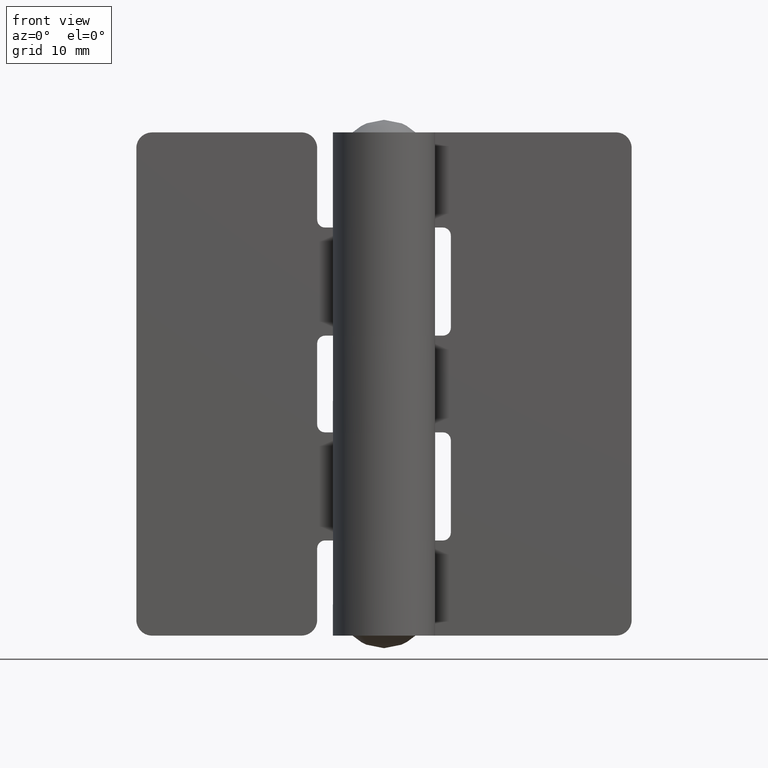
[diagram: clean part render]
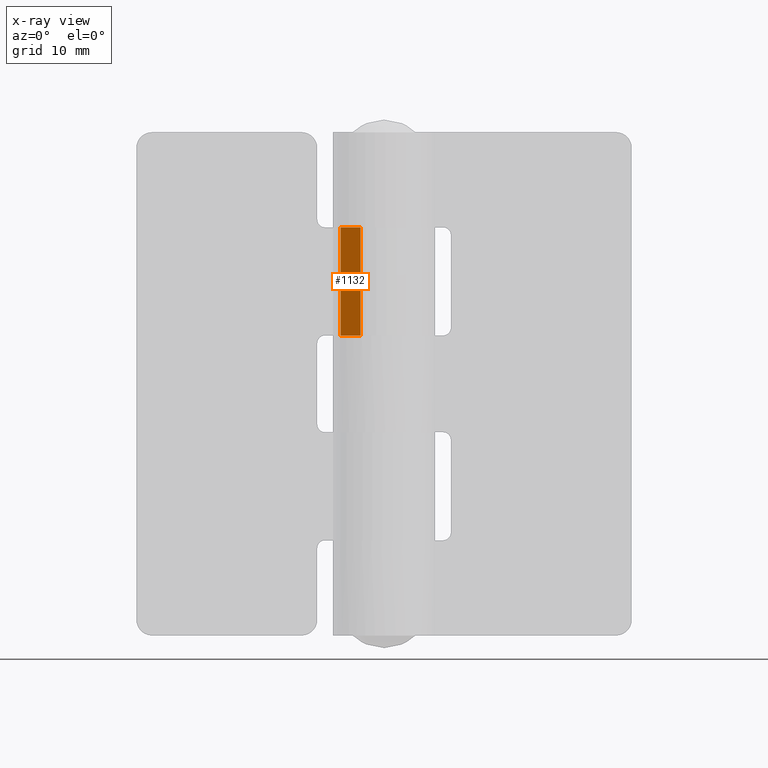
[diagram: x-ray — body ghosted, one internal face saturated and labeled with its STEP entity id]
A machine part, front view, then the same camera in x-ray: the body is ghosted and one INTERNAL B-rep face — a face not visible from any outside direction — is saturated and labeled: STEP entity #1132.
In plain terms, the highlighted face is a freeform B-spline surface patch.
Its self-contained STEP definition (entity closure, byte-faithful):
#624=CARTESIAN_POINT('',(-5.508857131928449,3.449999000000000,38.150001999999851));
#625=VERTEX_POINT('',#624);
#645=CARTESIAN_POINT('',(-2.966306838906535,1.857691238461695,38.150001999999851));
#646=VERTEX_POINT('',#645);
#647=CARTESIAN_POINT('',(-5.508857131928449,3.449999000000000,38.150001999999851));
#648=CARTESIAN_POINT('',(-2.966306838906535,1.857691238461695,38.150001999999851));
#649=QUASI_UNIFORM_CURVE('',1,(#647,#648),.UNSPECIFIED.,.F.,.U.);
#650=EDGE_CURVE('',#625,#646,#649,.T.);
#804=CARTESIAN_POINT('',(-2.966306838906535,1.857691238461695,51.900002000000100));
#805=VERTEX_POINT('',#804);
#825=CARTESIAN_POINT('',(-5.508857131928449,3.449999000000000,51.900002000000100));
#826=VERTEX_POINT('',#825);
#827=CARTESIAN_POINT('',(-5.508857131928449,3.449999000000000,51.900002000000100));
#828=CARTESIAN_POINT('',(-2.966306838906535,1.857691238461695,51.900002000000100));
#829=QUASI_UNIFORM_CURVE('',1,(#827,#828),.UNSPECIFIED.,.F.,.U.);
#830=EDGE_CURVE('',#826,#805,#829,.T.);
#1041=CARTESIAN_POINT('',(-5.508857131928449,3.449999000000000,51.900002000000100));
#1042=CARTESIAN_POINT('',(-5.508857131928449,3.449999000000000,38.150001999999851));
#1043=QUASI_UNIFORM_CURVE('',1,(#1041,#1042),.UNSPECIFIED.,.F.,.U.);
#1044=EDGE_CURVE('',#826,#625,#1043,.T.);
#1112=CARTESIAN_POINT('',(-2.966306838906535,1.857691238461695,51.900002000000100));
#1113=CARTESIAN_POINT('',(-2.966306838906535,1.857691238461695,38.150001999999851));
#1114=QUASI_UNIFORM_CURVE('',1,(#1112,#1113),.UNSPECIFIED.,.F.,.U.);
#1115=EDGE_CURVE('',#805,#646,#1114,.T.);
#1121=CARTESIAN_POINT('',(-2.839306528300973,1.778155513701397,37.463189059474018));
#1122=CARTESIAN_POINT('',(-5.635857578927037,3.529534810178344,37.463189059474018));
#1123=CARTESIAN_POINT('',(-2.839306528300974,1.778155513701397,52.586813834114722));
#1124=CARTESIAN_POINT('',(-5.635857578927037,3.529534810178344,52.586813834114722));
#1125=B_SPLINE_SURFACE_WITH_KNOTS('',1,1,((#1121,#1123),(#1122,#1124)),.UNSPECIFIED.,.F.,.F.,.U.,(2,2),(2,2),(0.0,3.299701080232242),(0.0,15.123624774640700),.UNSPECIFIED.);
#1126=ORIENTED_EDGE('',*,*,#650,.F.);
#1127=ORIENTED_EDGE('',*,*,#1044,.F.);
#1128=ORIENTED_EDGE('',*,*,#830,.T.);
#1129=ORIENTED_EDGE('',*,*,#1115,.T.);
#1130=EDGE_LOOP('',(#1126,#1127,#1128,#1129));
#1131=FACE_OUTER_BOUND('',#1130,.T.);
#1132=ADVANCED_FACE('',(#1131),#1125,.T.);